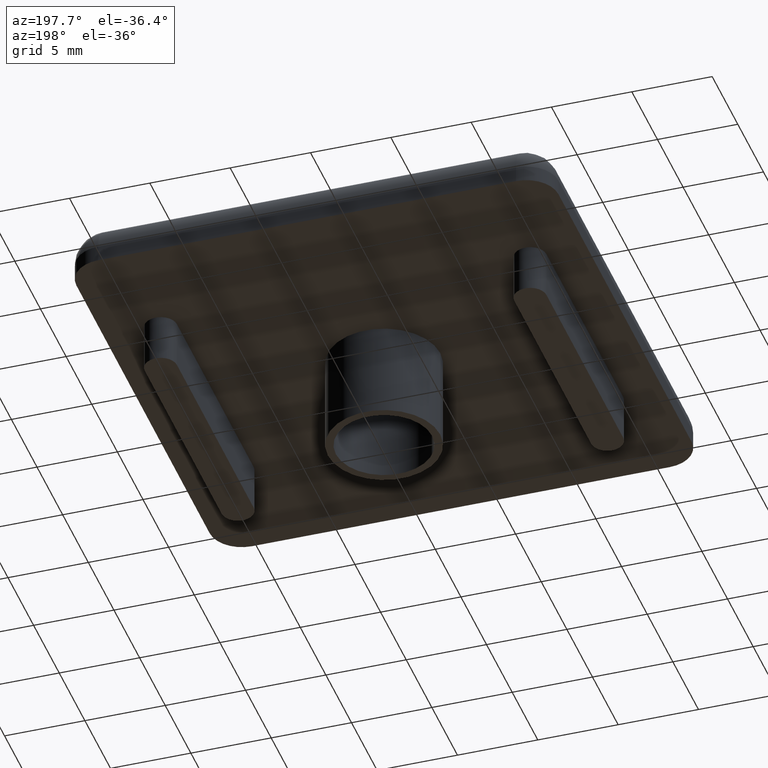
[diagram: clean part render]
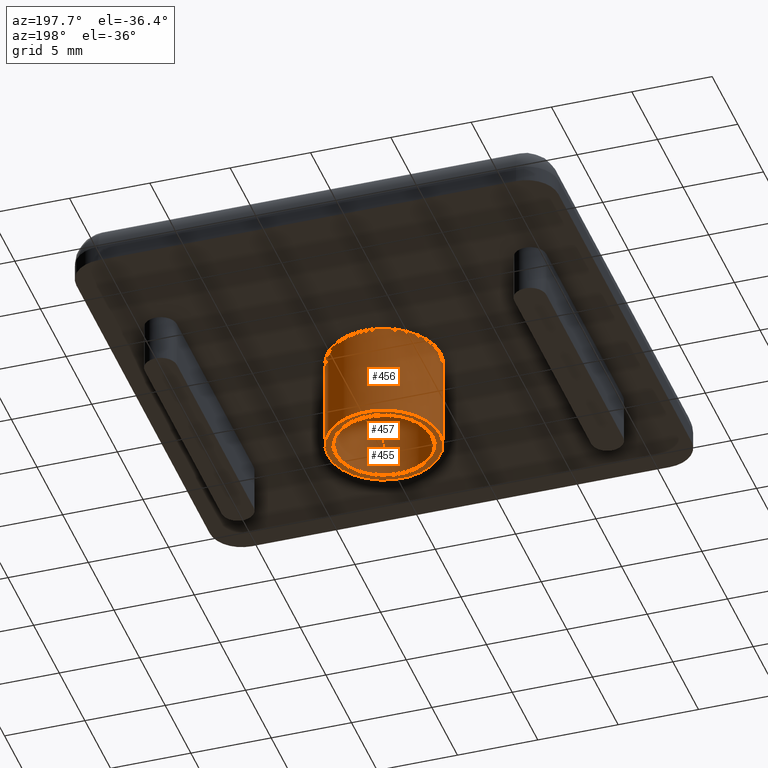
[diagram: same view with one multi-face feature highlighted, each face labeled with its STEP entity id]
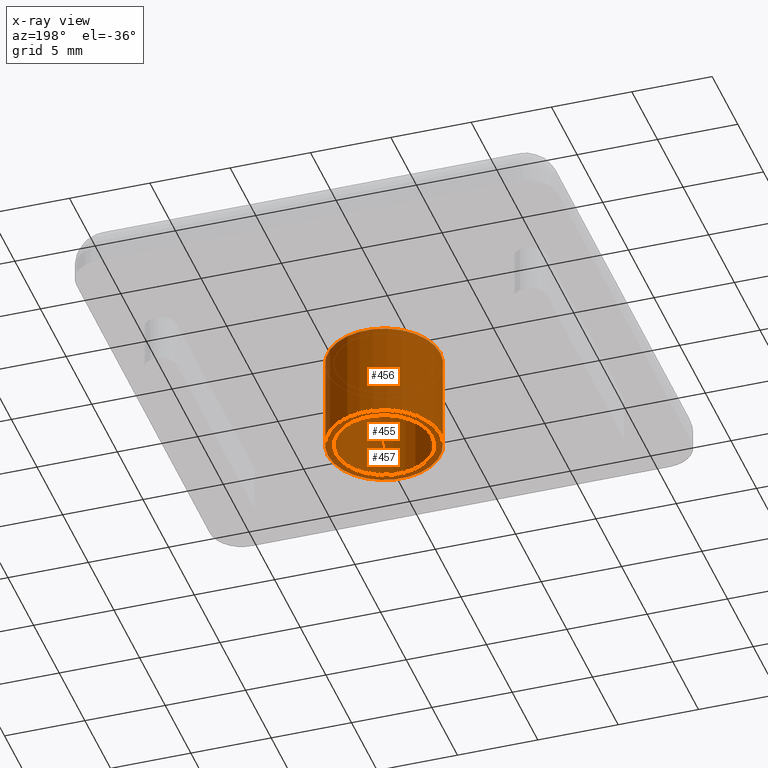
[diagram: x-ray of the same camera — body ghosted, the whole feature saturated]
A machine part, auxiliary view. The highlighted faces form ONE feature: a stepped (counterbored) hole: 2 coaxial cylindrical walls of radii 3 -> 3.5 mm joined by 1 annular planar shoulder face(s). The faces share edges in the B-rep.
The next image is the same camera in x-ray: the body ghosted and the whole hole feature saturated, so the bore chain is visible through the body.
Their STEP definitions:
[1] entity #456 (Cylinder):
#106=FACE_BOUND('',#146,.T.);
#112=FACE_OUTER_BOUND('',#145,.T.);
#145=EDGE_LOOP('',(#315));
#146=EDGE_LOOP('',(#316));
#183=CIRCLE('',#493,3.5);
#184=CIRCLE('',#494,3.5);
#211=VERTEX_POINT('',#714);
#212=VERTEX_POINT('',#716);
#251=EDGE_CURVE('',#211,#211,#183,.T.);
#252=EDGE_CURVE('',#212,#212,#184,.T.);
#315=ORIENTED_EDGE('',*,*,#251,.F.);
#316=ORIENTED_EDGE('',*,*,#252,.F.);
#442=CYLINDRICAL_SURFACE('',#492,3.5);
#456=ADVANCED_FACE('',(#112,#106),#442,.T.);
#492=AXIS2_PLACEMENT_3D('',#713,#557,#558);
#493=AXIS2_PLACEMENT_3D('',#715,#559,#560);
#494=AXIS2_PLACEMENT_3D('',#717,#561,#562);
#557=DIRECTION('center_axis',(0.,0.,-1.));
#558=DIRECTION('ref_axis',(1.,0.,0.));
#559=DIRECTION('center_axis',(0.,0.,-1.));
#560=DIRECTION('ref_axis',(1.,0.,0.));
#561=DIRECTION('center_axis',(0.,0.,1.));
#562=DIRECTION('ref_axis',(1.,0.,0.));
#713=CARTESIAN_POINT('Origin',(0.,0.,0.));
#714=CARTESIAN_POINT('',(-3.5,4.28626379701574E-16,-6.));
#715=CARTESIAN_POINT('Origin',(0.,0.,-6.));
#716=CARTESIAN_POINT('',(-3.5,4.28626379701574E-16,0.));
#717=CARTESIAN_POINT('Origin',(0.,0.,0.));
[2] entity #455 (Cylinder):
#105=FACE_BOUND('',#144,.T.);
#111=FACE_OUTER_BOUND('',#143,.T.);
#143=EDGE_LOOP('',(#313));
#144=EDGE_LOOP('',(#314));
#181=CIRCLE('',#490,3.);
#182=CIRCLE('',#491,3.);
#209=VERTEX_POINT('',#709);
#210=VERTEX_POINT('',#711);
#249=EDGE_CURVE('',#209,#209,#181,.T.);
#250=EDGE_CURVE('',#210,#210,#182,.T.);
#313=ORIENTED_EDGE('',*,*,#249,.F.);
#314=ORIENTED_EDGE('',*,*,#250,.F.);
#441=CYLINDRICAL_SURFACE('',#489,3.);
#455=ADVANCED_FACE('',(#111,#105),#441,.F.);
#489=AXIS2_PLACEMENT_3D('',#708,#551,#552);
#490=AXIS2_PLACEMENT_3D('',#710,#553,#554);
#491=AXIS2_PLACEMENT_3D('',#712,#555,#556);
#551=DIRECTION('center_axis',(0.,0.,-1.));
#552=DIRECTION('ref_axis',(1.,0.,0.));
#553=DIRECTION('center_axis',(0.,0.,1.));
#554=DIRECTION('ref_axis',(1.,0.,0.));
#555=DIRECTION('center_axis',(0.,0.,-1.));
#556=DIRECTION('ref_axis',(1.,0.,0.));
#708=CARTESIAN_POINT('Origin',(0.,0.,0.));
#709=CARTESIAN_POINT('',(-3.,3.67394039744206E-16,-6.));
#710=CARTESIAN_POINT('Origin',(0.,0.,-6.));
#711=CARTESIAN_POINT('',(-3.,3.67394039744206E-16,0.));
#712=CARTESIAN_POINT('Origin',(0.,0.,0.));
[3] entity #457 (Plane):
#91=PLANE('',#495);
#107=FACE_BOUND('',#148,.T.);
#113=FACE_OUTER_BOUND('',#147,.T.);
#147=EDGE_LOOP('',(#317));
#148=EDGE_LOOP('',(#318));
#181=CIRCLE('',#490,3.);
#183=CIRCLE('',#493,3.5);
#209=VERTEX_POINT('',#709);
#211=VERTEX_POINT('',#714);
#249=EDGE_CURVE('',#209,#209,#181,.T.);
#251=EDGE_CURVE('',#211,#211,#183,.T.);
#317=ORIENTED_EDGE('',*,*,#251,.T.);
#318=ORIENTED_EDGE('',*,*,#249,.T.);
#457=ADVANCED_FACE('',(#113,#107),#91,.F.);
#490=AXIS2_PLACEMENT_3D('',#710,#553,#554);
#493=AXIS2_PLACEMENT_3D('',#715,#559,#560);
#495=AXIS2_PLACEMENT_3D('',#718,#563,#564);
#553=DIRECTION('center_axis',(0.,0.,1.));
#554=DIRECTION('ref_axis',(1.,0.,0.));
#559=DIRECTION('center_axis',(0.,0.,-1.));
#560=DIRECTION('ref_axis',(1.,0.,0.));
#563=DIRECTION('center_axis',(0.,0.,1.));
#564=DIRECTION('ref_axis',(1.,0.,0.));
#709=CARTESIAN_POINT('',(-3.,3.67394039744206E-16,-6.));
#710=CARTESIAN_POINT('Origin',(0.,0.,-6.));
#714=CARTESIAN_POINT('',(-3.5,4.28626379701574E-16,-6.));
#715=CARTESIAN_POINT('Origin',(0.,0.,-6.));
#718=CARTESIAN_POINT('Origin',(1.67888272668602E-16,6.60847038467355E-17,
-6.));